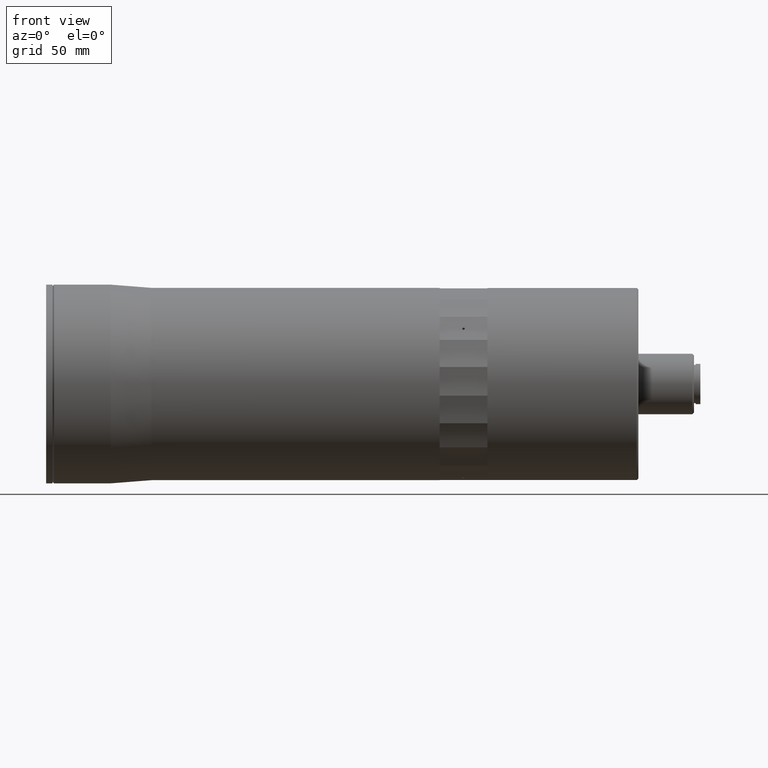
[diagram: clean part render]
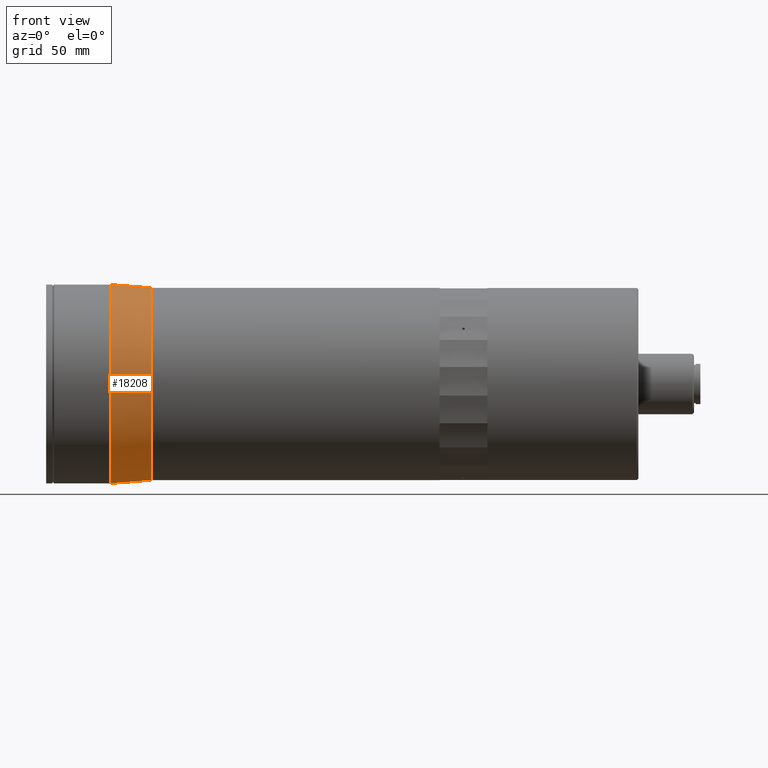
[diagram: same view with one face highlighted and labeled with its STEP entity id]
A machine part, front view. The second image highlights one B-rep face of the part: STEP entity #18208.
In plain terms, the highlighted conical surface has half-angle 4.485 deg.
Its self-contained STEP definition (entity closure, byte-faithful):
#1433 = DIRECTION ( 'NONE',  ( -1.000000000000000000, -0.0000000000000000000, -0.0000000000000000000 ) ) ;
#2562 = VECTOR ( 'NONE', #4329, 1000.000000000000100 ) ;
#2563 = CARTESIAN_POINT ( 'NONE',  ( -223.2195510870452900, 0.0000000000000000000, 0.0000000000000000000 ) ) ;
#2704 = CARTESIAN_POINT ( 'NONE',  ( -223.2195510870452900, 7.409113134841481200E-015, -60.49999999999995000 ) ) ;
#3506 = EDGE_CURVE ( 'NONE', #12646, #5150, #15512, .T. ) ;
#4086 = FACE_OUTER_BOUND ( 'NONE', #22182, .T. ) ;
#4329 = DIRECTION ( 'NONE',  ( -0.9969377742000536900, 9.576608278861315700E-018, -0.07819894099693824900 ) ) ;
#4457 = EDGE_CURVE ( 'NONE', #5150, #8561, #14930, .T. ) ;
#4630 = ORIENTED_EDGE ( 'NONE', *, *, #14662, .F. ) ;
#5150 = VERTEX_POINT ( 'NONE', #10868 ) ;
#5486 = EDGE_CURVE ( 'NONE', #12646, #11844, #22830, .T. ) ;
#7082 = AXIS2_PLACEMENT_3D ( 'NONE', #2563, #16917, #22393 ) ;
#8561 = VERTEX_POINT ( 'NONE', #15393 ) ;
#8606 = ORIENTED_EDGE ( 'NONE', *, *, #5486, .F. ) ;
#8729 = DIRECTION ( 'NONE',  ( 0.0000000000000000000, 0.0000000000000000000, 1.000000000000000000 ) ) ;
#10602 = ORIENTED_EDGE ( 'NONE', *, *, #4457, .T. ) ;
#10868 = CARTESIAN_POINT ( 'NONE',  ( -223.2195510870452900, 0.0000000000000000000, 60.49999999999995000 ) ) ;
#10896 = DIRECTION ( 'NONE',  ( -0.9969377742000536900, 0.0000000000000000000, 0.07819894099693824900 ) ) ;
#11844 = VERTEX_POINT ( 'NONE', #14994 ) ;
#12358 = CARTESIAN_POINT ( 'NONE',  ( -223.2195510870452900, 0.0000000000000000000, 0.0000000000000000000 ) ) ;
#12413 = VECTOR ( 'NONE', #10896, 1000.000000000000100 ) ;
#12646 = VERTEX_POINT ( 'NONE', #21643 ) ;
#13601 = DIRECTION ( 'NONE',  ( 0.0000000000000000000, 0.0000000000000000000, 1.000000000000000000 ) ) ;
#14043 = AXIS2_PLACEMENT_3D ( 'NONE', #20698, #22615, #13601 ) ;
#14144 = ORIENTED_EDGE ( 'NONE', *, *, #3506, .T. ) ;
#14662 = EDGE_CURVE ( 'NONE', #11844, #8561, #18041, .T. ) ;
#14930 = LINE ( 'NONE', #21876, #12413 ) ;
#14994 = CARTESIAN_POINT ( 'NONE',  ( -248.7170261548746700, 7.654042494670949900E-015, -62.49999999999993600 ) ) ;
#15393 = CARTESIAN_POINT ( 'NONE',  ( -248.7170261548746700, 0.0000000000000000000, 62.49999999999993600 ) ) ;
#15512 = CIRCLE ( 'NONE', #7082, 60.49999999999995000 ) ;
#16917 = DIRECTION ( 'NONE',  ( -1.000000000000000000, -0.0000000000000000000, -0.0000000000000000000 ) ) ;
#18041 = CIRCLE ( 'NONE', #14043, 62.49999999999993600 ) ;
#18208 = ADVANCED_FACE ( 'NONE', ( #4086 ), #18452, .T. ) ;
#18452 = CONICAL_SURFACE ( 'NONE', #20294, 60.49999999999995000, 0.07827885983553824200 ) ;
#20294 = AXIS2_PLACEMENT_3D ( 'NONE', #12358, #1433, #8729 ) ;
#20698 = CARTESIAN_POINT ( 'NONE',  ( -248.7170261548746700, 0.0000000000000000000, 0.0000000000000000000 ) ) ;
#21643 = CARTESIAN_POINT ( 'NONE',  ( -223.2195510870452900, 7.409113134841481200E-015, -60.49999999999995000 ) ) ;
#21876 = CARTESIAN_POINT ( 'NONE',  ( -223.2195510870452900, 0.0000000000000000000, 60.49999999999995000 ) ) ;
#22182 = EDGE_LOOP ( 'NONE', ( #8606, #14144, #10602, #4630 ) ) ;
#22393 = DIRECTION ( 'NONE',  ( 0.0000000000000000000, 0.0000000000000000000, 1.000000000000000000 ) ) ;
#22615 = DIRECTION ( 'NONE',  ( -1.000000000000000000, -0.0000000000000000000, -0.0000000000000000000 ) ) ;
#22830 = LINE ( 'NONE', #2704, #2562 ) ;